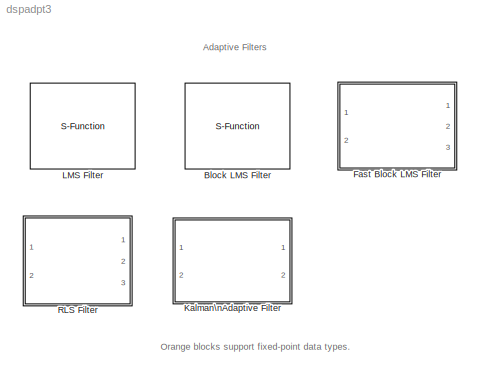
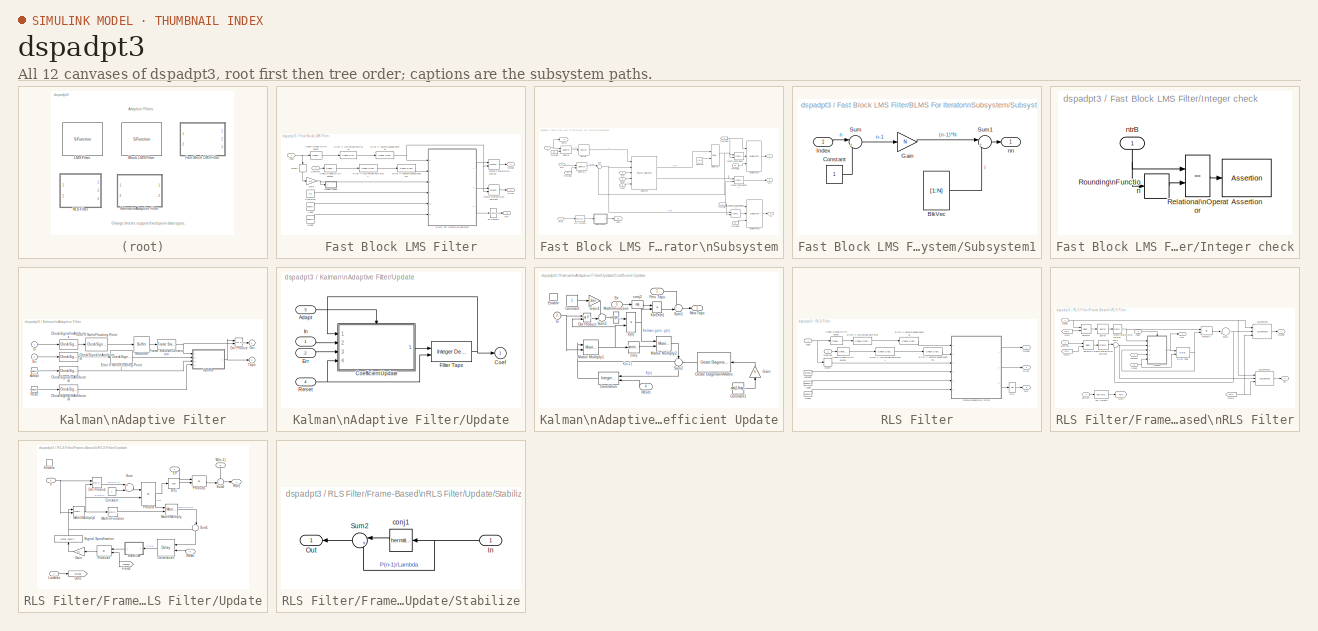
[diagram: thumbnail index - all 12 canvases of the model, root first then tree order]
MODEL dspadpt3
KIND library
BLOCK [S-Function] Block LMS Filter
  FunctionName = sdspblms
  MaskCallbackString = ||||dspblkblklms;|||dspblkblklms;||||
  MaskDescription = Computes filter weights based on the Block LMS algorithm for filtering of the input signal. The filter weights are updated once for every block of data that is processed.\n\nSelect the Enable/disable adaptation via input port check box to create an Adapt port on the block. When the input to this port is nonzero, the block continuously updates the filter weights. When the input to this port is zero...<+156ch>
  MaskDisplay = disp(blkname)\nport_label('input',si(1).port, si(1).txt);\nport_label('input',si(2).port, si(2).txt);\nport_label('input',si(3).port, si(3).txt);\nport_label('input',si(4).port, si(4).txt);\nport_label('input',si(5).port, si(5).txt);\n\nport_label('output',so(1).port, so(1).txt);\nport_label('output',so(2).port, so(2).txt);\nport_label('output',so(3).port, so(3).txt);\n\n\n
  MaskEnableString = off,off,on,on,on,on,on,on,on,on,on,on
  MaskHelp = web(dspbhelp);
  MaskIconFrame = on
  MaskIconOpaque = on
  MaskIconRotate = none
  MaskIconUnits = normalized
  MaskInitialization = resetflag = resetflag-1;\n[si,so]=dspblkblklms('icon');\nblkname = strvcat('  Block  ', '   LMS');
  MaskPromptString = dummy1|dummy2|Filter length:|Block size:|Specify step size via:|Step size (mu):|Leakage factor (0 to 1):|------------------------- Show additional parameters -------------------------|Initial value of filter weights:|Enable/disable adaptation via input port|Reset input:|Output filter weights
  MaskSelfModifiable = on
  MaskStyleString = popup(Block LMS|Fast Block LMS),checkbox,edit,edit,popup(Dialog|Input port),edit,edit,checkbox,edit,checkbox,popup(None|Rising edge|Falling edge|Either edge|Non-zero sample),checkbox
  MaskTabNameString = ,,,,,,,,,,,
  MaskToolTipString = on,on,on,on,on,on,on,on,on,on,on,on
  MaskTunableValueString = off,off,off,off,off,on,on,on,off,off,off,off
  MaskType = Block LMS Filter
  MaskValueString = Block LMS|off|32|32|Dialog|0.1|1.0|off|0|off|None|on
  MaskVarAliasString = ,,,,,,,,,,,
  MaskVariables = algo=&1;ShowPortLabels=&2;L=@3;N=@4;stepflag=@5;mu=@6;leakage=@7;addnparflag=@8;ic=@9;Adapt=@10;resetflag=@11;weights=@12;
  MaskVisibilityString = off,off,on,on,on,on,on,on,off,off,off,off
  Parameters = L,N,stepflag,mu,leakage,addnparflag,ic,Adapt,resetflag,weights
  Ports = [2, 3]
BLOCK [SubSystem] Fast Block LMS Filter
  ErrorFcn = dspblkadpterrfcn
  MaskCallbackString = |||dspblkfblms('addparams');|||dspblkfblms('addparams');||||
  MaskDescription = Computes filter weights based on the Fast Block LMS algorithm for filtering of the input signal. The filter weights are updated once for every block of data that is processed. This block uses FFT for fast convolution.\n\nSelect the Enable/disable adaptation via input port check box to create an Adapt port on the block. When the input to this port is nonzero, the block continuoulsy updates the filt...<+203ch>
  MaskDisplay = disp(blkname);
  MaskEnableString = on,on,on,on,on,on,on,on,on,on,on
  MaskIconFrame = on
  MaskIconOpaque = off
  MaskIconRotate = none
  MaskIconUnits = autoscale
  MaskInitialization = if algo == 1\n	blkname = strvcat('  Block  ', '   LMS');\nelse\n	blkname = strvcat('Fast Block ', '    LMS');	\nend\ndspblkfblms('init');
  MaskPromptString = Algorithm:|Filter length:|Block size:|Specify step size via:|Step size (mu):|Leakage factor (0 to 1):|------------------------- Show additional parameters -------------------------|Inital value of filter weights:|Enable/disable adaptation via input port|Reset input:|Output filter weights
  MaskSelfModifiable = on
  MaskStyleString = popup(Block LMS|Fast Block LMS),edit,edit,popup(Dialog|Input port),edit,edit,checkbox,edit,checkbox,popup(None|Rising Edge|Falling Edge|Either Edge|Non-zero sample),checkbox
  MaskTabNameString = ,,,,,,,,,,
  MaskToolTipString = on,on,on,on,on,on,on,on,on,on,on
  MaskTunableValueString = off,off,off,off,on,on,on,off,off,off,off
  MaskType = Fast Block LMS Filter
  MaskValueString = Fast Block LMS|32|32|Dialog|0.1|1.0|off|0|off|None|on
  MaskVarAliasString = ,,,,,,,,,,
  MaskVariables = algo=@1;L=@2;N=@3;stepflag=@4;mu=@5;leakage=@6;addnparflag=@7;ic=@8;Adapt=@9;resetflag=@10;weights=@11;
  MaskVisibilityString = off,on,on,on,on,on,on,off,off,off,off
  MinAlgLoopOccurrences = off
  Ports = [2, 3]
  PropExecContextAcrossSSBoundary = on
  RTWSystemCode = Auto
  TreatAsAtomicUnit = off
BLOCK [Constant] Fast Block LMS Filter/Adapt
  Value = boolean(1)
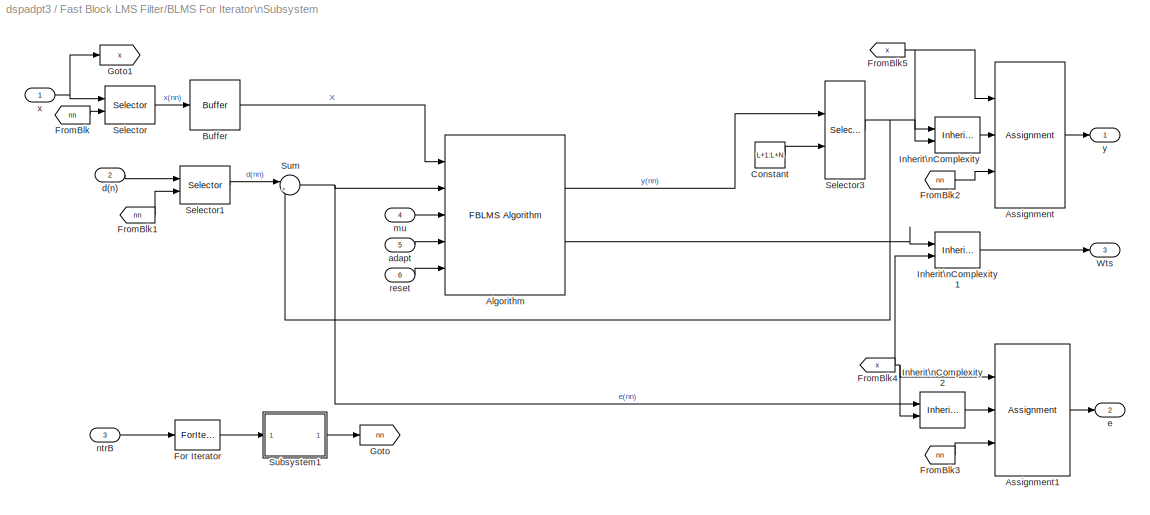
BLOCK [SubSystem] Fast Block LMS Filter/BLMS For Iterator\nSubsystem
  MaskCallbackString = ||
  MaskEnableString = on,on,on
  MaskIconFrame = on
  MaskIconOpaque = on
  MaskIconRotate = none
  MaskIconUnits = autoscale
  MaskInitialization = dspblkfblmsfor;
  MaskPromptString = Algorithm:|Input step size via port:|Send filter weights to output:
  MaskSelfModifiable = on
  MaskStyleString = popup(Block LMS|Fast Block LMS),checkbox,checkbox
  MaskTabNameString = ,,
  MaskToolTipString = on,on,on
  MaskTunableValueString = off,off,off
  MaskValueString = Fast Block LMS|off|on
  MaskVarAliasString = ,,
  MaskVariables = algo_for=@1;stepflag_for=@2;weights_for=@3;
  MaskVisibilityString = on,on,on
  MinAlgLoopOccurrences = off
  Ports = [6, 3]
  PropExecContextAcrossSSBoundary = on
  RTWSystemCode = Auto
  TreatAsAtomicUnit = on
BLOCK [Reference] Fast Block LMS Filter/BLMS For Iterator\nSubsystem/Algorithm  REF=adptfiltsubsys/FBLMS Algorithm  (lib defined in mdl_8073bbbc424e)
  Ports = [5, 2]
  ShowPortLabels = on
  SourceBlock = adptfiltsubsys/FBLMS Algorithm
  SourceType = FBLMS Algorithm
  weights_algo = on
BLOCK [Assignment] Fast Block LMS Filter/BLMS For Iterator\nSubsystem/Assignment
  ElementSrc = External
  Ports = [3, 1]
BLOCK [Assignment] Fast Block LMS Filter/BLMS For Iterator\nSubsystem/Assignment1
  ElementSrc = External
  Ports = [3, 1]
BLOCK [Reference] Fast Block LMS Filter/BLMS For Iterator\nSubsystem/Buffer  REF=dspbuff3/Buffer
  N = L+N
  Ports = [1, 1]
  SourceBlock = dspbuff3/Buffer
  SourceType = Buffer
  V = L
  ic = 0
BLOCK [Constant] Fast Block LMS Filter/BLMS For Iterator\nSubsystem/Constant
  Value = L+1:L+N
BLOCK [ForIterator] Fast Block LMS Filter/BLMS For Iterator\nSubsystem/For Iterator
  IterationSource = external
  IterationVariableDataType = double
  Ports = [1, 1]
BLOCK [From] Fast Block LMS Filter/BLMS For Iterator\nSubsystem/FromBlk
  CloseFcn = tagdialog Close
  DialogController = Simulink.DDGSource
  GotoTag = nn
BLOCK [From] Fast Block LMS Filter/BLMS For Iterator\nSubsystem/FromBlk1
  CloseFcn = tagdialog Close
  DialogController = Simulink.DDGSource
  GotoTag = nn
BLOCK [From] Fast Block LMS Filter/BLMS For Iterator\nSubsystem/FromBlk2
  CloseFcn = tagdialog Close
  DialogController = Simulink.DDGSource
  GotoTag = nn
BLOCK [From] Fast Block LMS Filter/BLMS For Iterator\nSubsystem/FromBlk3
  CloseFcn = tagdialog Close
  DialogController = Simulink.DDGSource
  GotoTag = nn
BLOCK [From] Fast Block LMS Filter/BLMS For Iterator\nSubsystem/FromBlk4
  CloseFcn = tagdialog Close
  DialogController = Simulink.DDGSource
  GotoTag = x
BLOCK [From] Fast Block LMS Filter/BLMS For Iterator\nSubsystem/FromBlk5
  CloseFcn = tagdialog Close
  DialogController = Simulink.DDGSource
  GotoTag = x
BLOCK [Goto] Fast Block LMS Filter/BLMS For Iterator\nSubsystem/Goto
  DialogController = Simulink.DDGSource
  GotoTag = nn
  TagVisibility = local
BLOCK [Goto] Fast Block LMS Filter/BLMS For Iterator\nSubsystem/Goto1
  DialogController = Simulink.DDGSource
  GotoTag = x
  TagVisibility = local
BLOCK [Reference] Fast Block LMS Filter/BLMS For Iterator\nSubsystem/Inherit\nComplexity  REF=dspsigattribs/Inherit\nComplexity
  Ports = [2, 1]
  SourceBlock = dspsigattribs/Inherit\nComplexity
  SourceType = Inherit Complexity
BLOCK [Reference] Fast Block LMS Filter/BLMS For Iterator\nSubsystem/Inherit\nComplexity1  REF=dspsigattribs/Inherit\nComplexity
  Ports = [2, 1]
  SourceBlock = dspsigattribs/Inherit\nComplexity
  SourceType = Inherit Complexity
BLOCK [Reference] Fast Block LMS Filter/BLMS For Iterator\nSubsystem/Inherit\nComplexity2  REF=dspsigattribs/Inherit\nComplexity
  Ports = [2, 1]
  SourceBlock = dspsigattribs/Inherit\nComplexity
  SourceType = Inherit Complexity
BLOCK [Selector] Fast Block LMS Filter/BLMS For Iterator\nSubsystem/Selector
  ElementSrc = External
  Elements = [1 3]
  Ports = [2, 1]
BLOCK [Selector] Fast Block LMS Filter/BLMS For Iterator\nSubsystem/Selector1
  ElementSrc = External
  Elements = [1 3]
  Ports = [2, 1]
BLOCK [Selector] Fast Block LMS Filter/BLMS For Iterator\nSubsystem/Selector3
  ElementSrc = External
  Elements = [1 3]
  Ports = [2, 1]
BLOCK [SubSystem] Fast Block LMS Filter/BLMS For Iterator\nSubsystem/Subsystem1
  MinAlgLoopOccurrences = off
  Ports = [1, 1]
  PropExecContextAcrossSSBoundary = on
  RTWSystemCode = Auto
  TreatAsAtomicUnit = off
BLOCK [Constant] Fast Block LMS Filter/BLMS For Iterator\nSubsystem/Subsystem1/BlkVec
  Value = [1:N]
BLOCK [Constant] Fast Block LMS Filter/BLMS For Iterator\nSubsystem/Subsystem1/Constant
BLOCK [Gain] Fast Block LMS Filter/BLMS For Iterator\nSubsystem/Subsystem1/Gain
  Gain = N
BLOCK [Inport] Fast Block LMS Filter/BLMS For Iterator\nSubsystem/Subsystem1/Index
  IconDisplay = Port number
  LatchInput = off
BLOCK [Sum] Fast Block LMS Filter/BLMS For Iterator\nSubsystem/Subsystem1/Sum
  IconShape = round
  InputSameDT = off
  Inputs = |+-
  OutDataTypeMode = Inherit via internal rule
  Ports = [2, 1]
BLOCK [Sum] Fast Block LMS Filter/BLMS For Iterator\nSubsystem/Subsystem1/Sum1
  IconShape = round
  InputSameDT = off
  Inputs = |++
  OutDataTypeMode = Inherit via internal rule
  Ports = [2, 1]
BLOCK [Outport] Fast Block LMS Filter/BLMS For Iterator\nSubsystem/Subsystem1/nn
  BusOutputAsStruct = off
  IconDisplay = Port number
BLOCK [Sum] Fast Block LMS Filter/BLMS For Iterator\nSubsystem/Sum
  IconShape = round
  InputSameDT = off
  Inputs = |+-
  OutDataTypeMode = Inherit via internal rule
  Ports = [2, 1]
BLOCK [Outport] Fast Block LMS Filter/BLMS For Iterator\nSubsystem/Wts
  BusOutputAsStruct = off
  IconDisplay = Port number
  Port = 3
BLOCK [Inport] Fast Block LMS Filter/BLMS For Iterator\nSubsystem/adapt
  IconDisplay = Port number
  LatchInput = off
  Port = 5
BLOCK [Inport] Fast Block LMS Filter/BLMS For Iterator\nSubsystem/d(n)
  IconDisplay = Port number
  LatchInput = off
  Port = 2
BLOCK [Outport] Fast Block LMS Filter/BLMS For Iterator\nSubsystem/e
  BusOutputAsStruct = off
  IconDisplay = Port number
  Port = 2
BLOCK [Inport] Fast Block LMS Filter/BLMS For Iterator\nSubsystem/mu
  IconDisplay = Port number
  LatchInput = off
  Port = 4
BLOCK [Inport] Fast Block LMS Filter/BLMS For Iterator\nSubsystem/ntrB
  IconDisplay = Port number
  LatchInput = off
  Port = 3
BLOCK [Inport] Fast Block LMS Filter/BLMS For Iterator\nSubsystem/reset
  IconDisplay = Port number
  LatchInput = off
  Port = 6
BLOCK [Inport] Fast Block LMS Filter/BLMS For Iterator\nSubsystem/x
  IconDisplay = Port number
  LatchInput = off
BLOCK [Outport] Fast Block LMS Filter/BLMS For Iterator\nSubsystem/y
  BusOutputAsStruct = off
  IconDisplay = Port number
BLOCK [Reference] Fast Block LMS Filter/Check Signal\nAttributes  REF=dspsigattribs/Check Signal\nAttributes
  Complexity = Ignore
  DatatypeCheckMethod = Ignore
  DatatypeGeneral = Boolean
  Dimensions = Full matrix (2-D)
  DimsCheckMethod = Is...
  DtypeFixedSpecific = Any fixed-point
  DtypeFloatSpecific = Any floating-point
  DtypeIntSpecific = Any integer
  Frame = Ignore
  Ports = [1, 1]
  SampleMode = Ignore
  ShowPortLabels = on
  SigAttribCheckMethod = Matches attributes exactly
  SourceBlock = dspsigattribs/Check Signal\nAttributes
  SourceType = Check Signal Attributes
BLOCK [Reference] Fast Block LMS Filter/Check Signal\nAttributes1  REF=dspsigattribs/Check Signal\nAttributes
  Complexity = Ignore
  DatatypeCheckMethod = Ignore
  DatatypeGeneral = Boolean
  Dimensions = Full matrix (2-D)
  DimsCheckMethod = Is...
  DtypeFixedSpecific = Any fixed-point
  DtypeFloatSpecific = Any floating-point
  DtypeIntSpecific = Any integer
  Frame = Ignore
  Ports = [1, 1]
  SampleMode = Ignore
  ShowPortLabels = on
  SigAttribCheckMethod = Matches attributes exactly
  SourceBlock = dspsigattribs/Check Signal\nAttributes
  SourceType = Check Signal Attributes
BLOCK [Inport] Fast Block LMS Filter/Desired
  IconDisplay = Port number
  LatchInput = off
  Port = 2
BLOCK [Outport] Fast Block LMS Filter/Error
  BusOutputAsStruct = off
  IconDisplay = Port number
  Port = 2
BLOCK [Reference] Fast Block LMS Filter/Error If Not\nFloating-Point  REF=dspsigattribs/Check Signal\nAttributes
  Complexity = Ignore
  DatatypeCheckMethod = Is...
  DatatypeGeneral = Floating-point
  Dimensions = 1-D
  DimsCheckMethod = Ignore
  DtypeFixedSpecific = Any fixed-point
  DtypeFloatSpecific = Any floating-point
  DtypeIntSpecific = Any integer
  Frame = Ignore
  Ports = [1, 1]
  SampleMode = Ignore
  ShowPortLabels = on
  SigAttribCheckMethod = Does not match attributes exactly
  SourceBlock = dspsigattribs/Check Signal\nAttributes
  SourceType = Check Signal Attributes
BLOCK [Reference] Fast Block LMS Filter/Error If Not\nFloating-Point1  REF=dspsigattribs/Check Signal\nAttributes
  Complexity = Ignore
  DatatypeCheckMethod = Is...
  DatatypeGeneral = Floating-point
  Dimensions = 1-D
  DimsCheckMethod = Ignore
  DtypeFixedSpecific = Any fixed-point
  DtypeFloatSpecific = Any floating-point
  DtypeIntSpecific = Any integer
  Frame = Ignore
  Ports = [1, 1]
  SampleMode = Ignore
  ShowPortLabels = on
  SigAttribCheckMethod = Does not match attributes exactly
  SourceBlock = dspsigattribs/Check Signal\nAttributes
  SourceType = Check Signal Attributes
BLOCK [Reference] Fast Block LMS Filter/Error If sample-based\nvector  REF=dspsigattribs/Check Signal\nAttributes
  Complexity = Ignore
  DatatypeCheckMethod = Ignore
  DatatypeGeneral = Boolean
  Dimensions = Vector (1-D or 2-D)
  DimsCheckMethod = Is...
  DtypeFixedSpecific = Any fixed-point
  DtypeFloatSpecific = Any floating-point
  DtypeIntSpecific = Any integer
  Frame = Sample-based
  Ports = [1, 1]
  SampleMode = Ignore
  ShowPortLabels = on
  SigAttribCheckMethod = Matches attributes exactly
  SourceBlock = dspsigattribs/Check Signal\nAttributes
  SourceType = Check Signal Attributes
BLOCK [Reference] Fast Block LMS Filter/Error If sample-based\nvector1  REF=dspsigattribs/Check Signal\nAttributes
  Complexity = Ignore
  DatatypeCheckMethod = Ignore
  DatatypeGeneral = Boolean
  Dimensions = Vector (1-D or 2-D)
  DimsCheckMethod = Is...
  DtypeFixedSpecific = Any fixed-point
  DtypeFloatSpecific = Any floating-point
  DtypeIntSpecific = Any integer
  Frame = Sample-based
  Ports = [1, 1]
  SampleMode = Ignore
  ShowPortLabels = on
  SigAttribCheckMethod = Matches attributes exactly
  SourceBlock = dspsigattribs/Check Signal\nAttributes
  SourceType = Check Signal Attributes
BLOCK [Reference] Fast Block LMS Filter/Frame Status\nConversion  REF=dspsigattribs/Frame Status\nConversion
  Ports = [2, 1]
  ShowPortLabels = off
  SourceBlock = dspsigattribs/Frame Status\nConversion
  SourceType = Frame Status Conversion
  growRefPort = on
  outframe = Sample-based
BLOCK [Reference] Fast Block LMS Filter/Frame Status\nConversion1  REF=dspsigattribs/Frame Status\nConversion
  Ports = [2, 1]
  ShowPortLabels = off
  SourceBlock = dspsigattribs/Frame Status\nConversion
  SourceType = Frame Status Conversion
  growRefPort = on
  outframe = Sample-based
BLOCK [Gain] Fast Block LMS Filter/Gain
  Gain = 1/N
BLOCK [Inport] Fast Block LMS Filter/Input
  IconDisplay = Port number
  LatchInput = off
BLOCK [SubSystem] Fast Block LMS Filter/Integer check
  MinAlgLoopOccurrences = off
  Ports = [1]
  PropExecContextAcrossSSBoundary = on
  RTWSystemCode = Auto
  TreatAsAtomicUnit = off
BLOCK [Assertion] Fast Block LMS Filter/Integer check/Assertion
  AssertionFailFcn = error('The input frame length is not an integer multiple of the Block length');
BLOCK [RelationalOperator] Fast Block LMS Filter/Integer check/Relational\nOperator
  InputSameDT = off
  LogicOutDataTypeMode = Boolean
  Operator = ==
BLOCK [Rounding] Fast Block LMS Filter/Integer check/Rounding\nFunction
  Operator = fix
BLOCK [Inport] Fast Block LMS Filter/Integer check/ntrB
  IconDisplay = Port number
  LatchInput = off
BLOCK [Outport] Fast Block LMS Filter/Output
  BusOutputAsStruct = off
  IconDisplay = Port number
BLOCK [Constant] Fast Block LMS Filter/Reset
  Value = boolean(0)
BLOCK [Constant] Fast Block LMS Filter/Step-size
  OutDataTypeMode = Inherit via back propagation
  Value = mu
BLOCK [Reference] Fast Block LMS Filter/To Sample  REF=dspsigattribs/Frame Status\nConversion
  Ports = [1, 1]
  ShowPortLabels = off
  SourceBlock = dspsigattribs/Frame Status\nConversion
  SourceType = Frame Status Conversion
  growRefPort = off
  outframe = Sample-based
BLOCK [Width] Fast Block LMS Filter/Width
BLOCK [Outport] Fast Block LMS Filter/Wts
  BusOutputAsStruct = off
  IconDisplay = Port number
  Port = 3
BLOCK [SubSystem] Kalman\nAdaptive Filter
  MaskCallbackString = ||||||
  MaskDescription = One-step Kalman predictor algorithm for adaptive FIR filtering of input signal.\n\nIf 'Adapt input' is checked and the Adapt signal is zero, the algorithm temporarily disables adaptation of the filter coefficients.  A non-zero signal enables filter adaptation.\n\nIf the 'Reset input' is enabled and the Reset signal transitions appropriately, the filter coefficients are reset to the initial conditi...<+6ch>
  MaskDisplay = disp('Kalman')
  MaskEnableString = on,on,on,on,on,on,on
  MaskHelp = web(dspbhelp);
  MaskIconFrame = on
  MaskIconOpaque = off
  MaskIconRotate = none
  MaskIconUnits = autoscale
  MaskInitialization = if prod(size(ic0))==1, ic = ic0(ones(Ntaps,1)); else ic = ic0; end\nif prod(size(K0))==1, K = K0.*eye(Ntaps);\nelseif any(size(K0)==1), K = diag(K0);\nelse K=K0; end\ndspblkadpt('init');\n
  MaskPromptString = FIR filter length:|Measurement noise variance:|Process noise variance:|Initial value of filter taps:|Initial error correlation matrix:|Adapt input|Reset input:
  MaskSelfModifiable = on
  MaskStyleString = edit,edit,edit,edit,edit,checkbox,popup(None|Rising edge|Falling edge|Either edge|Non-zero sample)
  MaskTabNameString = ,,,,,,
  MaskToolTipString = on,on,on,on,on,on,on
  MaskTunableValueString = off,on,on,off,off,off,off
  MaskType = Kalman Adaptive Filter
  MaskValueString = 64|0.3|0.1|0|0.5|off|None
  MaskVarAliasString = ,,,,,,
  MaskVariables = Ntaps=@1;Jmin=@2;q=@3;ic0=@4;K0=@5;Adapt=@6;RstPort=@7;
  MaskVisibilityString = on,on,on,on,on,on,on
  MinAlgLoopOccurrences = off
  Ports = [2, 2]
  PropExecContextAcrossSSBoundary = on
  RTWSystemCode = Auto
  TreatAsAtomicUnit = off
BLOCK [Constant] Kalman\nAdaptive Filter/Adapt
  Value = boolean(1)
BLOCK [Reference] Kalman\nAdaptive Filter/Check Signal\nAttributes  REF=dspsigattribs/Check Signal\nAttributes
  Complexity = Ignore
  DatatypeCheckMethod = Ignore
  DatatypeGeneral = Boolean
  Dimensions = Scalar (1-D or 2-D)
  DimsCheckMethod = Is...
  DtypeFixedSpecific = Any fixed-point
  DtypeFloatSpecific = Any floating-point
  DtypeIntSpecific = Any integer
  Frame = Sample-based
  Ports = [1, 1]
  SampleMode = Ignore
  ShowPortLabels = on
  SigAttribCheckMethod = Does not match attributes exactly
  SourceBlock = dspsigattribs/Check Signal\nAttributes
  SourceType = Check Signal Attributes
BLOCK [Reference] Kalman\nAdaptive Filter/Check Signal\nAttributes1  REF=dspsigattribs/Check Signal\nAttributes
  Complexity = Ignore
  DatatypeCheckMethod = Ignore
  DatatypeGeneral = Boolean
  Dimensions = Scalar (1-D or 2-D)
  DimsCheckMethod = Is...
  DtypeFixedSpecific = Any fixed-point
  DtypeFloatSpecific = Any floating-point
  DtypeIntSpecific = Any integer
  Frame = Sample-based
  Ports = [1, 1]
  SampleMode = Ignore
  ShowPortLabels = on
  SigAttribCheckMethod = Does not match attributes exactly
  SourceBlock = dspsigattribs/Check Signal\nAttributes
  SourceType = Check Signal Attributes
BLOCK [Reference] Kalman\nAdaptive Filter/Check Signal\nAttributes2  REF=dspsigattribs/Check Signal\nAttributes
  Complexity = Ignore
  DatatypeCheckMethod = Ignore
  DatatypeGeneral = Boolean
  Dimensions = Scalar (1-D or 2-D)
  DimsCheckMethod = Is...
  DtypeFixedSpecific = Any fixed-point
  DtypeFloatSpecific = Any floating-point
  DtypeIntSpecific = Any integer
  Frame = Sample-based
  Ports = [1, 1]
  SampleMode = Ignore
  ShowPortLabels = on
  SigAttribCheckMethod = Does not match attributes exactly
  SourceBlock = dspsigattribs/Check Signal\nAttributes
  SourceType = Check Signal Attributes
BLOCK [Reference] Kalman\nAdaptive Filter/Check Signal\nAttributes3  REF=dspsigattribs/Check Signal\nAttributes
  Complexity = Ignore
  DatatypeCheckMethod = Ignore
  DatatypeGeneral = Boolean
  Dimensions = Scalar (1-D or 2-D)
  DimsCheckMethod = Is...
  DtypeFixedSpecific = Any fixed-point
  DtypeFloatSpecific = Any floating-point
  DtypeIntSpecific = Any integer
  Frame = Sample-based
  Ports = [1, 1]
  SampleMode = Ignore
  ShowPortLabels = on
  SigAttribCheckMethod = Does not match attributes exactly
  SourceBlock = dspsigattribs/Check Signal\nAttributes
  SourceType = Check Signal Attributes
BLOCK [Reference] Kalman\nAdaptive Filter/Dot Product  REF=simulink/Math\nOperations/Dot Product
  DoSatur = off
  InputSameDT = off
  LockScale = off
  OutDataType = sfix(16)
  OutScaling = 2^-10
  OutputDataTypeScalingMode = Inherit via internal rule
  Ports = [2, 1]
  RndMeth = Floor
  SourceBlock = simulink/Math\nOperations/Dot Product
  SourceType = Dot Product
BLOCK [Inport] Kalman\nAdaptive Filter/Err
  IconDisplay = Port number
  LatchInput = off
  Port = 2
BLOCK [Reference] Kalman\nAdaptive Filter/Error If Not\nFloating-Point  REF=dspsigattribs/Check Signal\nAttributes
  Complexity = Ignore
  DatatypeCheckMethod = Is...
  DatatypeGeneral = Floating-point
  Dimensions = 1-D
  DimsCheckMethod = Ignore
  DtypeFixedSpecific = Any fixed-point
  DtypeFloatSpecific = Any floating-point
  DtypeIntSpecific = Any integer
  Frame = Ignore
  Ports = [1, 1]
  SampleMode = Ignore
  ShowPortLabels = on
  SigAttribCheckMethod = Does not match attributes exactly
  SourceBlock = dspsigattribs/Check Signal\nAttributes
  SourceType = Check Signal Attributes
BLOCK [Reference] Kalman\nAdaptive Filter/Error If Not\nFloating-Point1  REF=dspsigattribs/Check Signal\nAttributes
  Complexity = Ignore
  DatatypeCheckMethod = Is...
  DatatypeGeneral = Floating-point
  Dimensions = 1-D
  DimsCheckMethod = Ignore
  DtypeFixedSpecific = Any fixed-point
  DtypeFloatSpecific = Any floating-point
  DtypeIntSpecific = Any integer
  Frame = Ignore
  Ports = [1, 1]
  SampleMode = Ignore
  ShowPortLabels = on
  SigAttribCheckMethod = Does not match attributes exactly
  SourceBlock = dspsigattribs/Check Signal\nAttributes
  SourceType = Check Signal Attributes
BLOCK [Reference] Kalman\nAdaptive Filter/Frame Status\nConversion  REF=dspsigattribs/Frame Status\nConversion
  Ports = [1, 1]
  ShowPortLabels = off
  SourceBlock = dspsigattribs/Frame Status\nConversion
  SourceType = Frame Status Conversion
  growRefPort = off
  outframe = Sample-based
BLOCK [Inport] Kalman\nAdaptive Filter/In
  IconDisplay = Port number
  LatchInput = off
BLOCK [Outport] Kalman\nAdaptive Filter/Out
  BusOutputAsStruct = off
  IconDisplay = Port number
  InitialOutput = 0
BLOCK [Reference] Kalman\nAdaptive Filter/Rebuffer  REF=dspbuff3/Buffer
  N = Ntaps
  Ports = [1, 1]
  SourceBlock = dspbuff3/Buffer
  SourceType = Buffer
  V = Ntaps-1
  ic = 0
BLOCK [Constant] Kalman\nAdaptive Filter/Reset
  Value = boolean(0)
BLOCK [Outport] Kalman\nAdaptive Filter/Taps
  BusOutputAsStruct = off
  IconDisplay = Port number
  InitialOutput = 0
  Port = 2
BLOCK [SubSystem] Kalman\nAdaptive Filter/Update
  MinAlgLoopOccurrences = off
  Ports = [4, 1]
  PropExecContextAcrossSSBoundary = on
  RTWSystemCode = Auto
  TreatAsAtomicUnit = off
BLOCK [Inport] Kalman\nAdaptive Filter/Update/Adapt
  IconDisplay = Port number
  LatchInput = off
  Port = 3
BLOCK [Outport] Kalman\nAdaptive Filter/Update/Coef
  BusOutputAsStruct = off
  IconDisplay = Port number
  InitialOutput = 0
BLOCK [SubSystem] Kalman\nAdaptive Filter/Update/Coefficient Update
  MinAlgLoopOccurrences = off
  Ports = [4, 1, 1]
  PropExecContextAcrossSSBoundary = on
  RTWSystemCode = Auto
  TreatAsAtomicUnit = on
BLOCK [Constant] Kalman\nAdaptive Filter/Update/Coefficient Update/Constant
  OutDataTypeMode = Inherit via back propagation
BLOCK [Constant] Kalman\nAdaptive Filter/Update/Coefficient Update/Constant1
  OutDataTypeMode = Inherit via back propagation
  Value = ones(1,Ntaps)
BLOCK [Reference] Kalman\nAdaptive Filter/Update/Coefficient Update/Correlation  REF=dspobslib/Integer Delay
  Ports = [2, 1]
  SourceBlock = dspobslib/Integer Delay
  SourceType = Integer Delay
  delay = 1
  ic = K
  reset_popup = Either edge
BLOCK [Reference] Kalman\nAdaptive Filter/Update/Coefficient Update/Create Diagonal\nMatrix  REF=dspmtrx3/Create Diagonal\nMatrix
  Ports = [1, 1]
  SourceBlock = dspmtrx3/Create Diagonal\nMatrix
  SourceType = Create Diagonal Matrix
BLOCK [Reference] Kalman\nAdaptive Filter/Update/Coefficient Update/Dot Product  REF=simulink/Math\nOperations/Dot Product
  Ports = [2, 1]
  SourceBlock = simulink/Math\nOperations/Dot Product
  SourceType = Dot Product
BLOCK [EnablePort] Kalman\nAdaptive Filter/Update/Coefficient Update/Enable
  Ports = []
  ZeroCross = off
BLOCK [Inport] Kalman\nAdaptive Filter/Update/Coefficient Update/Err
  IconDisplay = Port number
  LatchInput = off
  Port = 3
BLOCK [Gain] Kalman\nAdaptive Filter/Update/Coefficient Update/Gain
  Gain = q
BLOCK [Gain] Kalman\nAdaptive Filter/Update/Coefficient Update/Gain1
  Gain = Jmin
BLOCK [Inport] Kalman\nAdaptive Filter/Update/Coefficient Update/In
  IconDisplay = Port number
  LatchInput = off
  Port = 2
BLOCK [Math] Kalman\nAdaptive Filter/Update/Coefficient Update/Math\nFunction
  Operator = reciprocal
  Ports = [1, 1]
BLOCK [Reference] Kalman\nAdaptive Filter/Update/Coefficient Update/Matrix Multiply1  REF=dspmtrx3/Matrix Multiply
  OptimizationLevel = None
  Ports = [2, 1]
  SourceBlock = dspmtrx3/Matrix Multiply
  SourceType = Matrix Multiply
  numInputPorts = 2
BLOCK [Reference] Kalman\nAdaptive Filter/Update/Coefficient Update/Matrix Multiply2  REF=dspmtrx3/Matrix Multiply
  OptimizationLevel = None
  Ports = [2, 1]
  SourceBlock = dspmtrx3/Matrix Multiply
  SourceType = Matrix Multiply
  numInputPorts = 2
BLOCK [Outport] Kalman\nAdaptive Filter/Update/Coefficient Update/New Taps
  BusOutputAsStruct = off
  IconDisplay = Port number
  InitialOutput = ic
BLOCK [Inport] Kalman\nAdaptive Filter/Update/Coefficient Update/Prev Taps
  IconDisplay = Port number
  LatchInput = off
BLOCK [Inport] Kalman\nAdaptive Filter/Update/Coefficient Update/Reset
  IconDisplay = Port number
  LatchInput = off
  Port = 4
BLOCK [Sum] Kalman\nAdaptive Filter/Update/Coefficient Update/Sum1
  IconShape = round
  Inputs = ++|
  Ports = [2, 1]
BLOCK [Sum] Kalman\nAdaptive Filter/Update/Coefficient Update/Sum2
  IconShape = round
  Inputs = +-+
  Ports = [3, 1]
BLOCK [Sum] Kalman\nAdaptive Filter/Update/Coefficient Update/Sum3
  IconShape = round
  Inputs = ++|
  Ports = [2, 1]
BLOCK [Math] Kalman\nAdaptive Filter/Update/Coefficient Update/conj
  Operator = hermitian
  Ports = [1, 1]
BLOCK [Math] Kalman\nAdaptive Filter/Update/Coefficient Update/conj2
  Operator = conj
  Ports = [1, 1]
BLOCK [Product] Kalman\nAdaptive Filter/Update/Coefficient Update/k(n)
  Ports = [2, 1]
  RndMeth = Floor
BLOCK [Product] Kalman\nAdaptive Filter/Update/Coefficient Update/k(n)*e(n)
  Ports = [2, 1]
  RndMeth = Floor
BLOCK [Inport] Kalman\nAdaptive Filter/Update/Err
  IconDisplay = Port number
  LatchInput = off
  Port = 2
BLOCK [Reference] Kalman\nAdaptive Filter/Update/Filter Taps  REF=dspobslib/Integer Delay
  Ports = [2, 1]
  SourceBlock = dspobslib/Integer Delay
  SourceType = Integer Delay
  delay = 1
  ic = ic
  reset_popup = Non-zero sample
BLOCK [Inport] Kalman\nAdaptive Filter/Update/In
  IconDisplay = Port number
  LatchInput = off
BLOCK [Inport] Kalman\nAdaptive Filter/Update/Reset
  IconDisplay = Port number
  LatchInput = off
  Port = 4
BLOCK [S-Function] LMS Filter
  CopyFcn = dspfixptcopycallback;
  DialogController = dspDDGCreate
  DialogControllerArgs = DataTag0
  FunctionName = sdsplms
  MaskCallbackString = |||||||||||||||||||||||||||||||||||||
  MaskDescription = Adapts the filter weights based on the chosen algorithm for filtering of the input signal.\n\nSelect the Enable/disable adaptation via input port check box to create an Adapt port on the block. When the input to this port is nonzero, the block continuously updates the filter weights. When the input to this port is zero, the filter weights remain constant.\n\nIf the Reset port is enabled and a rese...<+76ch>
  MaskDisplay = disp(disp_str)\nport_label('input',si(1).port, si(1).txt);\nport_label('input',si(2).port, si(2).txt);\nport_label('input',si(3).port, si(3).txt);\nport_label('input',si(4).port, si(4).txt);\nport_label('input',si(5).port, si(5).txt);\n\nport_label('output',so(1).port, so(1).txt);\nport_label('output',so(2).port, so(2).txt);\nport_label('output',so(3).port, so(3).txt);\n\n\n
  MaskEnableString = off,on,on,on,on,on,on,on,on,on,on,on,on,on,off,on,on,on,on,on,on,on,on,on,on,on,on,on,on,on,on,on,on,on,on,on,on,off
  MaskHelp = web(dspbhelp);
  MaskIconFrame = on
  MaskIconOpaque = on
  MaskIconRotate = none
  MaskIconUnits = normalized
  MaskInitialization = resetflag = resetflag-1;\nic=flipud(ic(:));\n[si,so,disp_str,dtInfo]=dspblklms;\n\nSAME_AS = 1;\nUSER_DEF = 2;\n% prod outputs\nif dtInfo.prodOutputMode == 0 % 'USER_DEFINED'\n	prodOutput2Mode = USER_DEF;\n	prodOutput3Mode = USER_DEF;\n	prodOutput4Mode = USER_DEF;\n	quotientMode = USER_DEF;\nelse\n	prodOutput2Mode = SAME_AS;\n	prodOutput3Mode = SAME_AS;\n	prodOutput4Mode = SAME_AS;\n	quotientMode ...<+133ch>
  MaskPromptString = dummy|Algorithm:|Filter length:|Specify step size via:|Step size (mu):|Leakage factor (0 to 1):|Initial value of filter weights:|Enable/disable adaptation via input port|Reset input:|Output filter weights|Step size (mu) attributes:|Step size (mu) word length:|Step size (mu) fraction length:|Leakage factor attributes:|DUMMY lkg wordlength:|Leakage factor fraction length:|Accumulator (XTX) attribute...<+661ch>
  MaskSelfModifiable = on
  MaskStyleString = checkbox,popup(LMS|Normalized LMS|Sign-Error LMS|Sign-Data LMS|Sign-Sign LMS),edit,popup(Dialog|Input port),edit,edit,edit,checkbox,popup(None|Rising edge|Falling edge|Either edge|Non-zero sample),checkbox,popup(Same word length as first input|Specify word length|Binary point scaling|Slope and bias scaling|User-defined),edit,edit,popup(Same word length as first input|Specify word length|Binary poi...<+837ch>
  MaskTabNameString = ,,,,,,,,,,,,,,,,,,,,,,,,,,,,,,,,,,,,,
  MaskToolTipString = on,on,on,on,on,on,on,on,on,on,on,on,on,on,on,on,on,on,on,on,on,on,on,on,on,on,on,on,on,on,on,on,on,on,on,on,on,on
  MaskTunableValueString = off,off,off,off,on,on,off,off,off,off,off,off,off,off,off,off,off,off,off,off,off,off,off,off,off,off,off,off,off,off,off,off,off,off,off,off,off,off
  MaskType = LMS Filter
  MaskValueString = off|LMS|32|Dialog|0.1|1.0|0|off|None|on|Same word length as first input|16|15|User-defined|2|15|Same as first input|32|20|User-defined|20|Same as first input|32|20|User-defined|20|User-defined|20|User-defined|20|User-defined|20|Same as first input|16|15|Floor|off|off
  MaskVarAliasString = ,,,,,,,,,,,,,,,,,,,,,,,,,,,,,,,,,,,,,
  MaskVariables = ShowPortLabels=&1;Algo=@2;L=@3;stepflag=@4;mu=@5;leakage=@6;ic=@7;Adapt=@8;resetflag=@9;weights=@10;firstCoeffMode=@11;firstCoeffWordLength=@12;firstCoeffFracLength=@13;secondCoeffMode=@14;secondCoeffWordLength=@15;secondCoeffFracLength=@16;accumMode=@17;accumWordLength=@18;accumFracLength=@19;accum2Mode=@20;accum2FracLength=@21;prodOutputMode=@22;prodOutputWordLength=@23;prodOutputFracLength=@24;...<+285ch>
  MaskVisibilityString = off,on,on,on,on,on,on,on,on,on,on,on,on,on,off,on,on,on,on,on,on,on,on,on,on,on,on,on,on,on,on,on,on,on,on,on,on,off
  Parameters = Algo,L,stepflag,mu,leakage,ic,Adapt,resetflag,weights,accum2Mode,accum2FracLength,prodOutput2Mode,prodOutput2FracLength,prodOutput3Mode,prodOutput3FracLength,prodOutput4Mode,prodOutput4FracLength,quotientMode,quotientFracLength,dtInfo.firstCoeffMode, dtInfo.firstCoeffWordLength, dtInfo.firstCoeffFracLength,dtInfo.firstCoeffMode, dtInfo.firstCoeffWordLength, dtInfo.secondCoeffFracLength,dtInfo.prod...<+235ch>
  Ports = [2, 3]
BLOCK [SubSystem] RLS Filter
  ErrorFcn = dspblkadpterrfcn
  MaskCallbackString = |dspblkrls('addparams');||dspblkrls('addparams');|||||
  MaskDescription = Computes filter weights based on the exponentially weighted recursive least-squares (RLS) algorithm for adaptive filtering of the input signal.\n\nSelect the Enable/disable adaptation via input port check box to create an Adapt port on the block. When the input to this port is nonzero, the block continuoulsy updates the filter weights. When the input to this port is zero, the filter weights remain...<+129ch>
  MaskDisplay = disp(s);
  MaskEnableString = on,on,on,on,on,on,on,on,on
  MaskIconFrame = on
  MaskIconOpaque = off
  MaskIconRotate = none
  MaskIconUnits = autoscale
  MaskInitialization = s ='RLS';\ndspblkrls('init');
  MaskPromptString = Filter length:|Specify forgetting factor via:|Forgetting factor (0 to 1):|------------------------- Show additional parameters -------------------------|Initial value of filter weights:|Initial input variance estimate:|Enable/disable adaptation via input port|Reset input:|Output filter weights
  MaskSelfModifiable = on
  MaskStyleString = edit,popup(Dialog|Input port),edit,checkbox,edit,edit,checkbox,popup(None|Rising edge|Falling edge|Either edge|Non-zero sample),checkbox
  MaskTabNameString = ,,,,,,,,
  MaskToolTipString = on,on,on,on,on,on,on,on,on
  MaskTunableValueString = off,off,on,on,off,off,off,off,off
  MaskType = RLS Adaptive filter
  MaskValueString = 32|Dialog|1.0|off|0|0.1|off|None|on
  MaskVarAliasString = ,,,,,,,,
  MaskVariables = L=@1;lambdaflag=@2;lambda=@3;addnparflag=@4;ic=@5;delta=@6;Adapt=@7;resetflag=@8;weights=@9;
  MaskVisibilityString = on,on,on,on,off,off,off,off,off
  MinAlgLoopOccurrences = off
  Ports = [2, 3]
  PropExecContextAcrossSSBoundary = on
  RTWSystemCode = Auto
  TreatAsAtomicUnit = off
BLOCK [Constant] RLS Filter/Adapt
  Value = boolean(1)
BLOCK [Reference] RLS Filter/Check Signal\nAttributes  REF=dspsigattribs/Check Signal\nAttributes
  Complexity = Ignore
  DatatypeCheckMethod = Ignore
  DatatypeGeneral = Boolean
  Dimensions = Full matrix (2-D)
  DimsCheckMethod = Is...
  DtypeFixedSpecific = Any fixed-point
  DtypeFloatSpecific = Any floating-point
  DtypeIntSpecific = Any integer
  Frame = Ignore
  Ports = [1, 1]
  SampleMode = Ignore
  ShowPortLabels = on
  SigAttribCheckMethod = Matches attributes exactly
  SourceBlock = dspsigattribs/Check Signal\nAttributes
  SourceType = Check Signal Attributes
BLOCK [Reference] RLS Filter/Check Signal\nAttributes1  REF=dspsigattribs/Check Signal\nAttributes
  Complexity = Ignore
  DatatypeCheckMethod = Ignore
  DatatypeGeneral = Boolean
  Dimensions = Full matrix (2-D)
  DimsCheckMethod = Is...
  DtypeFixedSpecific = Any fixed-point
  DtypeFloatSpecific = Any floating-point
  DtypeIntSpecific = Any integer
  Frame = Ignore
  Ports = [1, 1]
  SampleMode = Ignore
  ShowPortLabels = on
  SigAttribCheckMethod = Matches attributes exactly
  SourceBlock = dspsigattribs/Check Signal\nAttributes
  SourceType = Check Signal Attributes
BLOCK [Inport] RLS Filter/Desired
  IconDisplay = Port number
  LatchInput = off
  Port = 2
BLOCK [Outport] RLS Filter/Error
  BusOutputAsStruct = off
  IconDisplay = Port number
  Port = 2
BLOCK [Reference] RLS Filter/Error If Not\nFloating-Point  REF=dspsigattribs/Check Signal\nAttributes
  Complexity = Ignore
  DatatypeCheckMethod = Is...
  DatatypeGeneral = Floating-point
  Dimensions = 1-D
  DimsCheckMethod = Ignore
  DtypeFixedSpecific = Any fixed-point
  DtypeFloatSpecific = Any floating-point
  DtypeIntSpecific = Any integer
  Frame = Ignore
  Ports = [1, 1]
  SampleMode = Ignore
  ShowPortLabels = on
  SigAttribCheckMethod = Does not match attributes exactly
  SourceBlock = dspsigattribs/Check Signal\nAttributes
  SourceType = Check Signal Attributes
BLOCK [Reference] RLS Filter/Error If Not\nFloating-Point1  REF=dspsigattribs/Check Signal\nAttributes
  Complexity = Ignore
  DatatypeCheckMethod = Is...
  DatatypeGeneral = Floating-point
  Dimensions = 1-D
  DimsCheckMethod = Ignore
  DtypeFixedSpecific = Any fixed-point
  DtypeFloatSpecific = Any floating-point
  DtypeIntSpecific = Any integer
  Frame = Ignore
  Ports = [1, 1]
  SampleMode = Ignore
  ShowPortLabels = on
  SigAttribCheckMethod = Does not match attributes exactly
  SourceBlock = dspsigattribs/Check Signal\nAttributes
  SourceType = Check Signal Attributes
BLOCK [Reference] RLS Filter/Error If sample-based\nvector  REF=dspsigattribs/Check Signal\nAttributes
  Complexity = Ignore
  DatatypeCheckMethod = Ignore
  DatatypeGeneral = Boolean
  Dimensions = Vector (1-D or 2-D)
  DimsCheckMethod = Is...
  DtypeFixedSpecific = Any fixed-point
  DtypeFloatSpecific = Any floating-point
  DtypeIntSpecific = Any integer
  Frame = Sample-based
  Ports = [1, 1]
  SampleMode = Ignore
  ShowPortLabels = on
  SigAttribCheckMethod = Matches attributes exactly
  SourceBlock = dspsigattribs/Check Signal\nAttributes
  SourceType = Check Signal Attributes
BLOCK [Reference] RLS Filter/Error If sample-based\nvector1  REF=dspsigattribs/Check Signal\nAttributes
  Complexity = Ignore
  DatatypeCheckMethod = Ignore
  DatatypeGeneral = Boolean
  Dimensions = Vector (1-D or 2-D)
  DimsCheckMethod = Is...
  DtypeFixedSpecific = Any fixed-point
  DtypeFloatSpecific = Any floating-point
  DtypeIntSpecific = Any integer
  Frame = Sample-based
  Ports = [1, 1]
  SampleMode = Ignore
  ShowPortLabels = on
  SigAttribCheckMethod = Matches attributes exactly
  SourceBlock = dspsigattribs/Check Signal\nAttributes
  SourceType = Check Signal Attributes
BLOCK [Reference] RLS Filter/Flip  REF=dspindex/Flip
  Ports = [1, 1]
  SourceBlock = dspindex/Flip
  SourceType = Flip
  dim = Columns
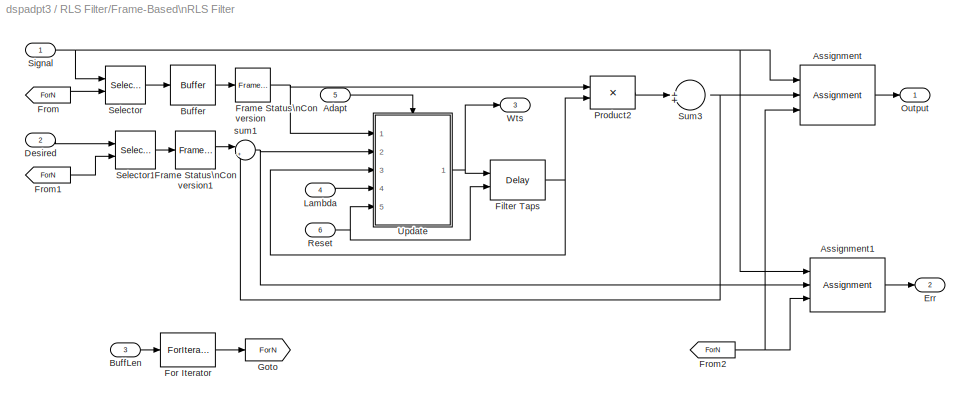
BLOCK [SubSystem] RLS Filter/Frame-Based\nRLS Filter
  MaskEnableString = on
  MaskIconFrame = on
  MaskIconOpaque = on
  MaskIconRotate = none
  MaskIconUnits = autoscale
  MaskInitialization = dspblkrlsfor;
  MaskPromptString = Send filter weights to output:
  MaskSelfModifiable = on
  MaskStyleString = checkbox
  MaskToolTipString = on
  MaskTunableValueString = off
  MaskValueString = on
  MaskVariables = weights_for=@1;
  MaskVisibilityString = on
  MinAlgLoopOccurrences = off
  Ports = [6, 3]
  PropExecContextAcrossSSBoundary = on
  RTWSystemCode = Auto
  TreatAsAtomicUnit = on
BLOCK [Inport] RLS Filter/Frame-Based\nRLS Filter/Adapt
  IconDisplay = Port number
  LatchInput = off
  Port = 5
BLOCK [Assignment] RLS Filter/Frame-Based\nRLS Filter/Assignment
  ColumnSrc = External
  ElementSrc = External
  Ports = [3, 1]
  Rows = -1
BLOCK [Assignment] RLS Filter/Frame-Based\nRLS Filter/Assignment1
  ColumnSrc = External
  ElementSrc = External
  Ports = [3, 1]
  Rows = -1
BLOCK [Inport] RLS Filter/Frame-Based\nRLS Filter/BuffLen
  IconDisplay = Port number
  LatchInput = off
  Port = 3
BLOCK [Reference] RLS Filter/Frame-Based\nRLS Filter/Buffer  REF=dspbuff3/Buffer
  N = L
  Ports = [1, 1]
  SourceBlock = dspbuff3/Buffer
  SourceType = Buffer
  V = L-1
  ic = 0
BLOCK [Inport] RLS Filter/Frame-Based\nRLS Filter/Desired
  IconDisplay = Port number
  LatchInput = off
  Port = 2
BLOCK [Outport] RLS Filter/Frame-Based\nRLS Filter/Err
  BusOutputAsStruct = off
  IconDisplay = Port number
  Port = 2
BLOCK [Reference] RLS Filter/Frame-Based\nRLS Filter/Filter Taps  REF=dspsigops/Delay
  Ports = [2, 1]
  SourceBlock = dspsigops/Delay
  SourceType = Delay
  delay = 1
  dif_ic_for_ch = off
  dif_ic_for_dly = off
  dly_unit = Samples
  ic = flipud(ic(:))
  ic_detail = on
  reset_popup = Non-zero sample
BLOCK [ForIterator] RLS Filter/Frame-Based\nRLS Filter/For Iterator
  IterationLimit = 4
  IterationSource = external
  Ports = [1, 1]
BLOCK [Reference] RLS Filter/Frame-Based\nRLS Filter/Frame Status\nConversion  REF=dspsigattribs/Frame Status\nConversion
  Ports = [1, 1]
  SourceBlock = dspsigattribs/Frame Status\nConversion
  SourceType = Frame Status Conversion
  growRefPort = off
  outframe = Sample-based
BLOCK [Reference] RLS Filter/Frame-Based\nRLS Filter/Frame Status\nConversion1  REF=dspsigattribs/Frame Status\nConversion
  Ports = [1, 1]
  SourceBlock = dspsigattribs/Frame Status\nConversion
  SourceType = Frame Status Conversion
  growRefPort = off
  outframe = Sample-based
BLOCK [From] RLS Filter/Frame-Based\nRLS Filter/From
  DialogController = Simulink.DDGSource
  GotoTag = ForN
BLOCK [From] RLS Filter/Frame-Based\nRLS Filter/From1
  DialogController = Simulink.DDGSource
  GotoTag = ForN
BLOCK [From] RLS Filter/Frame-Based\nRLS Filter/From2
  DialogController = Simulink.DDGSource
  GotoTag = ForN
BLOCK [Goto] RLS Filter/Frame-Based\nRLS Filter/Goto
  DialogController = Simulink.DDGSource
  GotoTag = ForN
  TagVisibility = local
BLOCK [Inport] RLS Filter/Frame-Based\nRLS Filter/Lambda
  IconDisplay = Port number
  LatchInput = off
  Port = 4
BLOCK [Outport] RLS Filter/Frame-Based\nRLS Filter/Output
  BusOutputAsStruct = off
  IconDisplay = Port number
BLOCK [Product] RLS Filter/Frame-Based\nRLS Filter/Product2
  InputSameDT = off
  Ports = [2, 1]
  RndMeth = Floor
BLOCK [Inport] RLS Filter/Frame-Based\nRLS Filter/Reset
  IconDisplay = Port number
  LatchInput = off
  Port = 6
BLOCK [Selector] RLS Filter/Frame-Based\nRLS Filter/Selector
  ElementSrc = External
  Elements = [1 3]
  Ports = [2, 1]
BLOCK [Selector] RLS Filter/Frame-Based\nRLS Filter/Selector1
  ElementSrc = External
  Elements = [1 3]
  Ports = [2, 1]
BLOCK [Inport] RLS Filter/Frame-Based\nRLS Filter/Signal
  IconDisplay = Port number
  LatchInput = off
BLOCK [Sum] RLS Filter/Frame-Based\nRLS Filter/Sum3
  IconShape = round
  InputSameDT = off
  Inputs = 1
  OutDataTypeMode = Inherit via internal rule
  Ports = [1, 1]
BLOCK [SubSystem] RLS Filter/Frame-Based\nRLS Filter/Update
  MinAlgLoopOccurrences = off
  Ports = [5, 1, 1]
  PropExecContextAcrossSSBoundary = on
  RTWSystemCode = Auto
  TreatAsAtomicUnit = off
BLOCK [Constant] RLS Filter/Frame-Based\nRLS Filter/Update/Constant
  OutDataTypeMode = Inherit via back propagation
BLOCK [Reference] RLS Filter/Frame-Based\nRLS Filter/Update/Correlation  REF=dspsigops/Delay
  Ports = [2, 1]
  SourceBlock = dspsigops/Delay
  SourceType = Delay
  delay = 1
  dif_ic_for_ch = on
  dif_ic_for_dly = off
  dly_unit = Samples
  ic = eye(L)./delta
  ic_detail = on
  reset_popup = Non-zero sample
BLOCK [Reference] RLS Filter/Frame-Based\nRLS Filter/Update/Dot Product  REF=simulink/Math\nOperations/Dot Product
  Ports = [2, 1]
  SourceBlock = simulink/Math\nOperations/Dot Product
  SourceType = Dot Product
BLOCK [EnablePort] RLS Filter/Frame-Based\nRLS Filter/Update/Enable
  Ports = []
BLOCK [Inport] RLS Filter/Frame-Based\nRLS Filter/Update/Err
  IconDisplay = Port number
  LatchInput = off
  Port = 2
BLOCK [From] RLS Filter/Frame-Based\nRLS Filter/Update/From2
  DialogController = Simulink.DDGSource
  GotoTag = lambda
BLOCK [Gain] RLS Filter/Frame-Based\nRLS Filter/Update/Gain
  Gain = 1/2
BLOCK [Goto] RLS Filter/Frame-Based\nRLS Filter/Update/Goto
  DialogController = Simulink.DDGSource
  GotoTag = lambda
  TagVisibility = local
BLOCK [Inport] RLS Filter/Frame-Based\nRLS Filter/Update/Lambda
  IconDisplay = Port number
  LatchInput = off
  Port = 4
BLOCK [Math] RLS Filter/Frame-Based\nRLS Filter/Update/Math\nFunction
  Operator = hermitian
  Ports = [1, 1]
BLOCK [Reference] RLS Filter/Frame-Based\nRLS Filter/Update/Matrix Multiply  REF=dspmtrx3/Matrix Multiply
  OptimizationLevel = None
  Ports = [2, 1]
  SourceBlock = dspmtrx3/Matrix Multiply
  SourceType = Matrix Multiply
  numInputPorts = 2
BLOCK [Reference] RLS Filter/Frame-Based\nRLS Filter/Update/Matrix Multiply1  REF=dspmtrx3/Matrix Multiply
  OptimizationLevel = None
  Ports = [2, 1]
  SourceBlock = dspmtrx3/Matrix Multiply
  SourceType = Matrix Multiply
  numInputPorts = 2
BLOCK [Product] RLS Filter/Frame-Based\nRLS Filter/Update/Product
  InputSameDT = off
  Inputs = /*
  Ports = [2, 1]
  RndMeth = Floor
BLOCK [Product] RLS Filter/Frame-Based\nRLS Filter/Update/Product1
  InputSameDT = off
  Ports = [2, 1]
  RndMeth = Floor
BLOCK [Product] RLS Filter/Frame-Based\nRLS Filter/Update/Product2
  InputSameDT = off
  Inputs = */
  Ports = [2, 1]
  RndMeth = Floor
BLOCK [Inport] RLS Filter/Frame-Based\nRLS Filter/Update/Reset
  IconDisplay = Port number
  LatchInput = off
  Port = 5
BLOCK [Reference] RLS Filter/Frame-Based\nRLS Filter/Update/Signal Specification  REF=simulink/Signal\nAttributes/Signal Specification
  D = [L,L]
  DataType = auto
  OutDataType = sfix(16)
  OutScaling = 2^0
  Ports = [1, 1]
  SamplingMode = auto
  SignalType = auto
  SourceBlock = simulink/Signal\nAttributes/Signal Specification
  SourceType = Signal Specification
  Ts = -1
BLOCK [SubSystem] RLS Filter/Frame-Based\nRLS Filter/Update/Stabilize
  MinAlgLoopOccurrences = off
  Ports = [1, 1]
  PropExecContextAcrossSSBoundary = on
  RTWSystemCode = Auto
  TreatAsAtomicUnit = off
BLOCK [Inport] RLS Filter/Frame-Based\nRLS Filter/Update/Stabilize/In
  IconDisplay = Port number
  LatchInput = off
BLOCK [Outport] RLS Filter/Frame-Based\nRLS Filter/Update/Stabilize/Out
  BusOutputAsStruct = off
  IconDisplay = Port number
BLOCK [Sum] RLS Filter/Frame-Based\nRLS Filter/Update/Stabilize/Sum2
  IconShape = round
  Inputs = |++
  Ports = [2, 1]
BLOCK [Math] RLS Filter/Frame-Based\nRLS Filter/Update/Stabilize/conj1
  Operator = hermitian
  Ports = [1, 1]
BLOCK [Sum] RLS Filter/Frame-Based\nRLS Filter/Update/Sum
  InputSameDT = off
  Ports = [2, 1]
BLOCK [Sum] RLS Filter/Frame-Based\nRLS Filter/Update/Sum1
  IconShape = round
  InputSameDT = off
  Inputs = +-|
  OutDataTypeMode = Inherit via internal rule
  Ports = [2, 1]
BLOCK [Sum] RLS Filter/Frame-Based\nRLS Filter/Update/Sum2
  IconShape = round
  InputSameDT = off
  Inputs = ++|
  OutDataTypeMode = Inherit via internal rule
  Ports = [2, 1]
BLOCK [Outport] RLS Filter/Frame-Based\nRLS Filter/Update/W(n)
  BusOutputAsStruct = off
  IconDisplay = Port number
BLOCK [Inport] RLS Filter/Frame-Based\nRLS Filter/Update/W(n-1)
  IconDisplay = Port number
  LatchInput = off
  Port = 3
BLOCK [Inport] RLS Filter/Frame-Based\nRLS Filter/Update/X
  IconDisplay = Port number
  LatchInput = off
BLOCK [Math] RLS Filter/Frame-Based\nRLS Filter/Update/conj
  Operator = conj
  Ports = [1, 1]
BLOCK [Outport] RLS Filter/Frame-Based\nRLS Filter/Wts
  BusOutputAsStruct = off
  IconDisplay = Port number
  Port = 3
BLOCK [Sum] RLS Filter/Frame-Based\nRLS Filter/sum1
  IconShape = round
  Inputs = |+-
  Ports = [2, 1]
BLOCK [Inport] RLS Filter/Input
  IconDisplay = Port number
  LatchInput = off
BLOCK [Constant] RLS Filter/Lambda
  OutDataTypeMode = Inherit via back propagation
  Value = lambda
BLOCK [Outport] RLS Filter/Output
  BusOutputAsStruct = off
  IconDisplay = Port number
BLOCK [Constant] RLS Filter/Reset
  Value = boolean(0)
BLOCK [Width] RLS Filter/Width
  OutputDataTypeScalingMode = Inherit via back propagation
BLOCK [Outport] RLS Filter/Wts
  BusOutputAsStruct = off
  IconDisplay = Port number
  Port = 3
ANNOTATION (root): Adaptive Filters
ANNOTATION (root): Orange blocks support fixed-point data types.
LINE Fast Block LMS Filter/Adapt:1 -> Fast Block LMS Filter/BLMS For Iterator\nSubsystem:5
LINE Fast Block LMS Filter/BLMS For Iterator\nSubsystem/Algorithm:1 -> Fast Block LMS Filter/BLMS For Iterator\nSubsystem/Selector3:1
LINE Fast Block LMS Filter/BLMS For Iterator\nSubsystem/Algorithm:2 -> Fast Block LMS Filter/BLMS For Iterator\nSubsystem/Inherit\nComplexity1:1
LINE Fast Block LMS Filter/BLMS For Iterator\nSubsystem/Assignment1:1 -> Fast Block LMS Filter/BLMS For Iterator\nSubsystem/e:1
LINE Fast Block LMS Filter/BLMS For Iterator\nSubsystem/Assignment:1 -> Fast Block LMS Filter/BLMS For Iterator\nSubsystem/y:1
LINE Fast Block LMS Filter/BLMS For Iterator\nSubsystem/Buffer:1 -> Fast Block LMS Filter/BLMS For Iterator\nSubsystem/Algorithm:1
LINE Fast Block LMS Filter/BLMS For Iterator\nSubsystem/Constant:1 -> Fast Block LMS Filter/BLMS For Iterator\nSubsystem/Selector3:2
LINE Fast Block LMS Filter/BLMS For Iterator\nSubsystem/For Iterator:1 -> Fast Block LMS Filter/BLMS For Iterator\nSubsystem/Subsystem1:1
LINE Fast Block LMS Filter/BLMS For Iterator\nSubsystem/FromBlk1:1 -> Fast Block LMS Filter/BLMS For Iterator\nSubsystem/Selector1:2
LINE Fast Block LMS Filter/BLMS For Iterator\nSubsystem/FromBlk2:1 -> Fast Block LMS Filter/BLMS For Iterator\nSubsystem/Assignment:3
LINE Fast Block LMS Filter/BLMS For Iterator\nSubsystem/FromBlk3:1 -> Fast Block LMS Filter/BLMS For Iterator\nSubsystem/Assignment1:3
NET Fast Block LMS Filter/BLMS For Iterator\nSubsystem/FromBlk4:1 -> Fast Block LMS Filter/BLMS For Iterator\nSubsystem/Assignment1:1, Fast Block LMS Filter/BLMS For Iterator\nSubsystem/Inherit\nComplexity1:2, Fast Block LMS Filter/BLMS For Iterator\nSubsystem/Inherit\nComplexity2:2
NET Fast Block LMS Filter/BLMS For Iterator\nSubsystem/FromBlk5:1 -> Fast Block LMS Filter/BLMS For Iterator\nSubsystem/Assignment:1, Fast Block LMS Filter/BLMS For Iterator\nSubsystem/Inherit\nComplexity:2
LINE Fast Block LMS Filter/BLMS For Iterator\nSubsystem/FromBlk:1 -> Fast Block LMS Filter/BLMS For Iterator\nSubsystem/Selector:2
LINE Fast Block LMS Filter/BLMS For Iterator\nSubsystem/Inherit\nComplexity1:1 -> Fast Block LMS Filter/BLMS For Iterator\nSubsystem/Wts:1
LINE Fast Block LMS Filter/BLMS For Iterator\nSubsystem/Inherit\nComplexity2:1 -> Fast Block LMS Filter/BLMS For Iterator\nSubsystem/Assignment1:2
LINE Fast Block LMS Filter/BLMS For Iterator\nSubsystem/Inherit\nComplexity:1 -> Fast Block LMS Filter/BLMS For Iterator\nSubsystem/Assignment:2
LINE Fast Block LMS Filter/BLMS For Iterator\nSubsystem/Selector1:1 -> Fast Block LMS Filter/BLMS For Iterator\nSubsystem/Sum:1
NET Fast Block LMS Filter/BLMS For Iterator\nSubsystem/Selector3:1 -> Fast Block LMS Filter/BLMS For Iterator\nSubsystem/Inherit\nComplexity:1, Fast Block LMS Filter/BLMS For Iterator\nSubsystem/Sum:2
LINE Fast Block LMS Filter/BLMS For Iterator\nSubsystem/Selector:1 -> Fast Block LMS Filter/BLMS For Iterator\nSubsystem/Buffer:1
LINE Fast Block LMS Filter/BLMS For Iterator\nSubsystem/Subsystem1/BlkVec:1 -> Fast Block LMS Filter/BLMS For Iterator\nSubsystem/Subsystem1/Sum1:2
LINE Fast Block LMS Filter/BLMS For Iterator\nSubsystem/Subsystem1/Constant:1 -> Fast Block LMS Filter/BLMS For Iterator\nSubsystem/Subsystem1/Sum:2
LINE Fast Block LMS Filter/BLMS For Iterator\nSubsystem/Subsystem1/Gain:1 -> Fast Block LMS Filter/BLMS For Iterator\nSubsystem/Subsystem1/Sum1:1
LINE Fast Block LMS Filter/BLMS For Iterator\nSubsystem/Subsystem1/Index:1 -> Fast Block LMS Filter/BLMS For Iterator\nSubsystem/Subsystem1/Sum:1
LINE Fast Block LMS Filter/BLMS For Iterator\nSubsystem/Subsystem1/Sum1:1 -> Fast Block LMS Filter/BLMS For Iterator\nSubsystem/Subsystem1/nn:1
LINE Fast Block LMS Filter/BLMS For Iterator\nSubsystem/Subsystem1/Sum:1 -> Fast Block LMS Filter/BLMS For Iterator\nSubsystem/Subsystem1/Gain:1
LINE Fast Block LMS Filter/BLMS For Iterator\nSubsystem/Subsystem1:1 -> Fast Block LMS Filter/BLMS For Iterator\nSubsystem/Goto:1
NET Fast Block LMS Filter/BLMS For Iterator\nSubsystem/Sum:1 -> Fast Block LMS Filter/BLMS For Iterator\nSubsystem/Algorithm:2, Fast Block LMS Filter/BLMS For Iterator\nSubsystem/Inherit\nComplexity2:1
LINE Fast Block LMS Filter/BLMS For Iterator\nSubsystem/adapt:1 -> Fast Block LMS Filter/BLMS For Iterator\nSubsystem/Algorithm:4
LINE Fast Block LMS Filter/BLMS For Iterator\nSubsystem/d(n):1 -> Fast Block LMS Filter/BLMS For Iterator\nSubsystem/Selector1:1
LINE Fast Block LMS Filter/BLMS For Iterator\nSubsystem/mu:1 -> Fast Block LMS Filter/BLMS For Iterator\nSubsystem/Algorithm:3
LINE Fast Block LMS Filter/BLMS For Iterator\nSubsystem/ntrB:1 -> Fast Block LMS Filter/BLMS For Iterator\nSubsystem/For Iterator:1
LINE Fast Block LMS Filter/BLMS For Iterator\nSubsystem/reset:1 -> Fast Block LMS Filter/BLMS For Iterator\nSubsystem/Algorithm:5
NET Fast Block LMS Filter/BLMS For Iterator\nSubsystem/x:1 -> Fast Block LMS Filter/BLMS For Iterator\nSubsystem/Goto1:1, Fast Block LMS Filter/BLMS For Iterator\nSubsystem/Selector:1
LINE Fast Block LMS Filter/BLMS For Iterator\nSubsystem:1 -> Fast Block LMS Filter/Frame Status\nConversion:1
LINE Fast Block LMS Filter/BLMS For Iterator\nSubsystem:2 -> Fast Block LMS Filter/Frame Status\nConversion1:1
LINE Fast Block LMS Filter/BLMS For Iterator\nSubsystem:3 -> Fast Block LMS Filter/To Sample:1
LINE Fast Block LMS Filter/Check Signal\nAttributes1:1 -> Fast Block LMS Filter/Error If Not\nFloating-Point1:1
LINE Fast Block LMS Filter/Check Signal\nAttributes:1 -> Fast Block LMS Filter/Error If Not\nFloating-Point:1
LINE Fast Block LMS Filter/Desired:1 -> Fast Block LMS Filter/Check Signal\nAttributes1:1
LINE Fast Block LMS Filter/Error If Not\nFloating-Point1:1 -> Fast Block LMS Filter/Error If sample-based\nvector1:1
LINE Fast Block LMS Filter/Error If Not\nFloating-Point:1 -> Fast Block LMS Filter/Error If sample-based\nvector:1
LINE Fast Block LMS Filter/Error If sample-based\nvector1:1 -> Fast Block LMS Filter/BLMS For Iterator\nSubsystem:2
NET Fast Block LMS Filter/Error If sample-based\nvector:1 -> Fast Block LMS Filter/BLMS For Iterator\nSubsystem:1, Fast Block LMS Filter/Frame Status\nConversion1:2, Fast Block LMS Filter/Frame Status\nConversion:2
LINE Fast Block LMS Filter/Frame Status\nConversion1:1 -> Fast Block LMS Filter/Error:1
LINE Fast Block LMS Filter/Frame Status\nConversion:1 -> Fast Block LMS Filter/Output:1
NET Fast Block LMS Filter/Gain:1 -> Fast Block LMS Filter/BLMS For Iterator\nSubsystem:3, Fast Block LMS Filter/Integer check:1
NET Fast Block LMS Filter/Input:1 -> Fast Block LMS Filter/Check Signal\nAttributes:1, Fast Block LMS Filter/Width:1
LINE Fast Block LMS Filter/Integer check/Relational\nOperator:1 -> Fast Block LMS Filter/Integer check/Assertion:1
LINE Fast Block LMS Filter/Integer check/Rounding\nFunction:1 -> Fast Block LMS Filter/Integer check/Relational\nOperator:2
NET Fast Block LMS Filter/Integer check/ntrB:1 -> Fast Block LMS Filter/Integer check/Relational\nOperator:1, Fast Block LMS Filter/Integer check/Rounding\nFunction:1
LINE Fast Block LMS Filter/Reset:1 -> Fast Block LMS Filter/BLMS For Iterator\nSubsystem:6
LINE Fast Block LMS Filter/Step-size:1 -> Fast Block LMS Filter/BLMS For Iterator\nSubsystem:4
LINE Fast Block LMS Filter/To Sample:1 -> Fast Block LMS Filter/Wts:1
LINE Fast Block LMS Filter/Width:1 -> Fast Block LMS Filter/Gain:1
LINE Kalman\nAdaptive Filter/Adapt:1 -> Kalman\nAdaptive Filter/Check Signal\nAttributes2:1
LINE Kalman\nAdaptive Filter/Check Signal\nAttributes1:1 -> Kalman\nAdaptive Filter/Error If Not\nFloating-Point1:1
LINE Kalman\nAdaptive Filter/Check Signal\nAttributes2:1 -> Kalman\nAdaptive Filter/Update:3
LINE Kalman\nAdaptive Filter/Check Signal\nAttributes3:1 -> Kalman\nAdaptive Filter/Update:4
LINE Kalman\nAdaptive Filter/Check Signal\nAttributes:1 -> Kalman\nAdaptive Filter/Error If Not\nFloating-Point:1
LINE Kalman\nAdaptive Filter/Dot Product:1 -> Kalman\nAdaptive Filter/Out:1
LINE Kalman\nAdaptive Filter/Err:1 -> Kalman\nAdaptive Filter/Check Signal\nAttributes1:1
LINE Kalman\nAdaptive Filter/Error If Not\nFloating-Point1:1 -> Kalman\nAdaptive Filter/Update:2
LINE Kalman\nAdaptive Filter/Error If Not\nFloating-Point:1 -> Kalman\nAdaptive Filter/Rebuffer:1
NET Kalman\nAdaptive Filter/Frame Status\nConversion:1 -> Kalman\nAdaptive Filter/Dot Product:2, Kalman\nAdaptive Filter/Update:1
LINE Kalman\nAdaptive Filter/In:1 -> Kalman\nAdaptive Filter/Check Signal\nAttributes:1
LINE Kalman\nAdaptive Filter/Rebuffer:1 -> Kalman\nAdaptive Filter/Frame Status\nConversion:1
LINE Kalman\nAdaptive Filter/Reset:1 -> Kalman\nAdaptive Filter/Check Signal\nAttributes3:1
LINE Kalman\nAdaptive Filter/Update/Adapt:1 -> Kalman\nAdaptive Filter/Update/Coefficient Update:enable
LINE Kalman\nAdaptive Filter/Update/Coefficient Update/Constant1:1 -> Kalman\nAdaptive Filter/Update/Coefficient Update/Gain:1
LINE Kalman\nAdaptive Filter/Update/Coefficient Update/Constant:1 -> Kalman\nAdaptive Filter/Update/Coefficient Update/Gain1:1
NET Kalman\nAdaptive Filter/Update/Coefficient Update/Correlation:1 -> Kalman\nAdaptive Filter/Update/Coefficient Update/Matrix Multiply1:1, Kalman\nAdaptive Filter/Update/Coefficient Update/Sum2:1
LINE Kalman\nAdaptive Filter/Update/Coefficient Update/Create Diagonal\nMatrix:1 -> Kalman\nAdaptive Filter/Update/Coefficient Update/Sum2:3
LINE Kalman\nAdaptive Filter/Update/Coefficient Update/Dot Product:1 -> Kalman\nAdaptive Filter/Update/Coefficient Update/Sum3:2
LINE Kalman\nAdaptive Filter/Update/Coefficient Update/Err:1 -> Kalman\nAdaptive Filter/Update/Coefficient Update/conj2:1
LINE Kalman\nAdaptive Filter/Update/Coefficient Update/Gain1:1 -> Kalman\nAdaptive Filter/Update/Coefficient Update/Sum3:1
LINE Kalman\nAdaptive Filter/Update/Coefficient Update/Gain:1 -> Kalman\nAdaptive Filter/Update/Coefficient Update/Create Diagonal\nMatrix:1
NET Kalman\nAdaptive Filter/Update/Coefficient Update/In:1 -> Kalman\nAdaptive Filter/Update/Coefficient Update/Dot Product:1, Kalman\nAdaptive Filter/Update/Coefficient Update/Matrix Multiply1:2
LINE Kalman\nAdaptive Filter/Update/Coefficient Update/Math\nFunction:1 -> Kalman\nAdaptive Filter/Update/Coefficient Update/k(n):1
NET Kalman\nAdaptive Filter/Update/Coefficient Update/Matrix Multiply1:1 -> Kalman\nAdaptive Filter/Update/Coefficient Update/Dot Product:2, Kalman\nAdaptive Filter/Update/Coefficient Update/conj:1, Kalman\nAdaptive Filter/Update/Coefficient Update/k(n):2
LINE Kalman\nAdaptive Filter/Update/Coefficient Update/Matrix Multiply2:1 -> Kalman\nAdaptive Filter/Update/Coefficient Update/Sum2:2
LINE Kalman\nAdaptive Filter/Update/Coefficient Update/Prev Taps:1 -> Kalman\nAdaptive Filter/Update/Coefficient Update/Sum1:1
LINE Kalman\nAdaptive Filter/Update/Coefficient Update/Reset:1 -> Kalman\nAdaptive Filter/Update/Coefficient Update/Correlation:2
LINE Kalman\nAdaptive Filter/Update/Coefficient Update/Sum1:1 -> Kalman\nAdaptive Filter/Update/Coefficient Update/New Taps:1
LINE Kalman\nAdaptive Filter/Update/Coefficient Update/Sum2:1 -> Kalman\nAdaptive Filter/Update/Coefficient Update/Correlation:1
LINE Kalman\nAdaptive Filter/Update/Coefficient Update/Sum3:1 -> Kalman\nAdaptive Filter/Update/Coefficient Update/Math\nFunction:1
LINE Kalman\nAdaptive Filter/Update/Coefficient Update/conj2:1 -> Kalman\nAdaptive Filter/Update/Coefficient Update/k(n)*e(n):1
LINE Kalman\nAdaptive Filter/Update/Coefficient Update/conj:1 -> Kalman\nAdaptive Filter/Update/Coefficient Update/Matrix Multiply2:2
LINE Kalman\nAdaptive Filter/Update/Coefficient Update/k(n)*e(n):1 -> Kalman\nAdaptive Filter/Update/Coefficient Update/Sum1:2
NET Kalman\nAdaptive Filter/Update/Coefficient Update/k(n):1 -> Kalman\nAdaptive Filter/Update/Coefficient Update/Matrix Multiply2:1, Kalman\nAdaptive Filter/Update/Coefficient Update/k(n)*e(n):2
LINE Kalman\nAdaptive Filter/Update/Coefficient Update:1 -> Kalman\nAdaptive Filter/Update/Filter Taps:1
LINE Kalman\nAdaptive Filter/Update/Err:1 -> Kalman\nAdaptive Filter/Update/Coefficient Update:3
NET Kalman\nAdaptive Filter/Update/Filter Taps:1 -> Kalman\nAdaptive Filter/Update/Coef:1, Kalman\nAdaptive Filter/Update/Coefficient Update:1
LINE Kalman\nAdaptive Filter/Update/In:1 -> Kalman\nAdaptive Filter/Update/Coefficient Update:2
NET Kalman\nAdaptive Filter/Update/Reset:1 -> Kalman\nAdaptive Filter/Update/Coefficient Update:4, Kalman\nAdaptive Filter/Update/Filter Taps:2
NET Kalman\nAdaptive Filter/Update:1 -> Kalman\nAdaptive Filter/Dot Product:1, Kalman\nAdaptive Filter/Taps:1
LINE RLS Filter/Adapt:1 -> RLS Filter/Frame-Based\nRLS Filter:5
LINE RLS Filter/Check Signal\nAttributes1:1 -> RLS Filter/Error If Not\nFloating-Point1:1
LINE RLS Filter/Check Signal\nAttributes:1 -> RLS Filter/Error If Not\nFloating-Point:1
LINE RLS Filter/Desired:1 -> RLS Filter/Check Signal\nAttributes1:1
LINE RLS Filter/Error If Not\nFloating-Point1:1 -> RLS Filter/Error If sample-based\nvector1:1
LINE RLS Filter/Error If Not\nFloating-Point:1 -> RLS Filter/Error If sample-based\nvector:1
LINE RLS Filter/Error If sample-based\nvector1:1 -> RLS Filter/Frame-Based\nRLS Filter:2
LINE RLS Filter/Error If sample-based\nvector:1 -> RLS Filter/Frame-Based\nRLS Filter:1
LINE RLS Filter/Flip:1 -> RLS Filter/Wts:1
LINE RLS Filter/Frame-Based\nRLS Filter/Adapt:1 -> RLS Filter/Frame-Based\nRLS Filter/Update:enable
LINE RLS Filter/Frame-Based\nRLS Filter/Assignment1:1 -> RLS Filter/Frame-Based\nRLS Filter/Err:1
LINE RLS Filter/Frame-Based\nRLS Filter/Assignment:1 -> RLS Filter/Frame-Based\nRLS Filter/Output:1
LINE RLS Filter/Frame-Based\nRLS Filter/BuffLen:1 -> RLS Filter/Frame-Based\nRLS Filter/For Iterator:1
LINE RLS Filter/Frame-Based\nRLS Filter/Buffer:1 -> RLS Filter/Frame-Based\nRLS Filter/Frame Status\nConversion:1
LINE RLS Filter/Frame-Based\nRLS Filter/Desired:1 -> RLS Filter/Frame-Based\nRLS Filter/Selector1:1
NET RLS Filter/Frame-Based\nRLS Filter/Filter Taps:1 -> RLS Filter/Frame-Based\nRLS Filter/Product2:2, RLS Filter/Frame-Based\nRLS Filter/Update:3
LINE RLS Filter/Frame-Based\nRLS Filter/For Iterator:1 -> RLS Filter/Frame-Based\nRLS Filter/Goto:1
LINE RLS Filter/Frame-Based\nRLS Filter/Frame Status\nConversion1:1 -> RLS Filter/Frame-Based\nRLS Filter/sum1:1
NET RLS Filter/Frame-Based\nRLS Filter/Frame Status\nConversion:1 -> RLS Filter/Frame-Based\nRLS Filter/Product2:1, RLS Filter/Frame-Based\nRLS Filter/Update:1
LINE RLS Filter/Frame-Based\nRLS Filter/From1:1 -> RLS Filter/Frame-Based\nRLS Filter/Selector1:2
NET RLS Filter/Frame-Based\nRLS Filter/From2:1 -> RLS Filter/Frame-Based\nRLS Filter/Assignment1:3, RLS Filter/Frame-Based\nRLS Filter/Assignment:3
LINE RLS Filter/Frame-Based\nRLS Filter/From:1 -> RLS Filter/Frame-Based\nRLS Filter/Selector:2
LINE RLS Filter/Frame-Based\nRLS Filter/Lambda:1 -> RLS Filter/Frame-Based\nRLS Filter/Update:4
LINE RLS Filter/Frame-Based\nRLS Filter/Product2:1 -> RLS Filter/Frame-Based\nRLS Filter/Sum3:1
NET RLS Filter/Frame-Based\nRLS Filter/Reset:1 -> RLS Filter/Frame-Based\nRLS Filter/Filter Taps:2, RLS Filter/Frame-Based\nRLS Filter/Update:5
LINE RLS Filter/Frame-Based\nRLS Filter/Selector1:1 -> RLS Filter/Frame-Based\nRLS Filter/Frame Status\nConversion1:1
LINE RLS Filter/Frame-Based\nRLS Filter/Selector:1 -> RLS Filter/Frame-Based\nRLS Filter/Buffer:1
NET RLS Filter/Frame-Based\nRLS Filter/Signal:1 -> RLS Filter/Frame-Based\nRLS Filter/Assignment1:1, RLS Filter/Frame-Based\nRLS Filter/Assignment:1, RLS Filter/Frame-Based\nRLS Filter/Selector:1
NET RLS Filter/Frame-Based\nRLS Filter/Sum3:1 -> RLS Filter/Frame-Based\nRLS Filter/Assignment:2, RLS Filter/Frame-Based\nRLS Filter/sum1:2
LINE RLS Filter/Frame-Based\nRLS Filter/Update/Constant:1 -> RLS Filter/Frame-Based\nRLS Filter/Update/Sum:2
LINE RLS Filter/Frame-Based\nRLS Filter/Update/Correlation:1 -> RLS Filter/Frame-Based\nRLS Filter/Update/Stabilize:1
LINE RLS Filter/Frame-Based\nRLS Filter/Update/Dot Product:1 -> RLS Filter/Frame-Based\nRLS Filter/Update/Sum:1
LINE RLS Filter/Frame-Based\nRLS Filter/Update/Err:1 -> RLS Filter/Frame-Based\nRLS Filter/Update/Product1:1
LINE RLS Filter/Frame-Based\nRLS Filter/Update/From2:1 -> RLS Filter/Frame-Based\nRLS Filter/Update/Product2:2
LINE RLS Filter/Frame-Based\nRLS Filter/Update/Gain:1 -> RLS Filter/Frame-Based\nRLS Filter/Update/Signal Specification:1
LINE RLS Filter/Frame-Based\nRLS Filter/Update/Lambda:1 -> RLS Filter/Frame-Based\nRLS Filter/Update/Goto:1
LINE RLS Filter/Frame-Based\nRLS Filter/Update/Math\nFunction:1 -> RLS Filter/Frame-Based\nRLS Filter/Update/Matrix Multiply:2
NET RLS Filter/Frame-Based\nRLS Filter/Update/Matrix Multiply1:1 -> RLS Filter/Frame-Based\nRLS Filter/Update/Dot Product:2, RLS Filter/Frame-Based\nRLS Filter/Update/Math\nFunction:1, RLS Filter/Frame-Based\nRLS Filter/Update/Product:2
LINE RLS Filter/Frame-Based\nRLS Filter/Update/Matrix Multiply:1 -> RLS Filter/Frame-Based\nRLS Filter/Update/Sum1:2
LINE RLS Filter/Frame-Based\nRLS Filter/Update/Product1:1 -> RLS Filter/Frame-Based\nRLS Filter/Update/Sum2:2
LINE RLS Filter/Frame-Based\nRLS Filter/Update/Product2:1 -> RLS Filter/Frame-Based\nRLS Filter/Update/Gain:1
NET RLS Filter/Frame-Based\nRLS Filter/Update/Product:1 -> RLS Filter/Frame-Based\nRLS Filter/Update/Matrix Multiply:1, RLS Filter/Frame-Based\nRLS Filter/Update/conj:1
LINE RLS Filter/Frame-Based\nRLS Filter/Update/Reset:1 -> RLS Filter/Frame-Based\nRLS Filter/Update/Correlation:2
NET RLS Filter/Frame-Based\nRLS Filter/Update/Signal Specification:1 -> RLS Filter/Frame-Based\nRLS Filter/Update/Matrix Multiply1:1, RLS Filter/Frame-Based\nRLS Filter/Update/Sum1:1
NET RLS Filter/Frame-Based\nRLS Filter/Update/Stabilize/In:1 -> RLS Filter/Frame-Based\nRLS Filter/Update/Stabilize/Sum2:2, RLS Filter/Frame-Based\nRLS Filter/Update/Stabilize/conj1:1
LINE RLS Filter/Frame-Based\nRLS Filter/Update/Stabilize/Sum2:1 -> RLS Filter/Frame-Based\nRLS Filter/Update/Stabilize/Out:1
LINE RLS Filter/Frame-Based\nRLS Filter/Update/Stabilize/conj1:1 -> RLS Filter/Frame-Based\nRLS Filter/Update/Stabilize/Sum2:1
LINE RLS Filter/Frame-Based\nRLS Filter/Update/Stabilize:1 -> RLS Filter/Frame-Based\nRLS Filter/Update/Product2:1
LINE RLS Filter/Frame-Based\nRLS Filter/Update/Sum1:1 -> RLS Filter/Frame-Based\nRLS Filter/Update/Correlation:1
LINE RLS Filter/Frame-Based\nRLS Filter/Update/Sum2:1 -> RLS Filter/Frame-Based\nRLS Filter/Update/W(n):1
LINE RLS Filter/Frame-Based\nRLS Filter/Update/Sum:1 -> RLS Filter/Frame-Based\nRLS Filter/Update/Product:1
LINE RLS Filter/Frame-Based\nRLS Filter/Update/W(n-1):1 -> RLS Filter/Frame-Based\nRLS Filter/Update/Sum2:1
NET RLS Filter/Frame-Based\nRLS Filter/Update/X:1 -> RLS Filter/Frame-Based\nRLS Filter/Update/Dot Product:1, RLS Filter/Frame-Based\nRLS Filter/Update/Matrix Multiply1:2
LINE RLS Filter/Frame-Based\nRLS Filter/Update/conj:1 -> RLS Filter/Frame-Based\nRLS Filter/Update/Product1:2
NET RLS Filter/Frame-Based\nRLS Filter/Update:1 -> RLS Filter/Frame-Based\nRLS Filter/Filter Taps:1, RLS Filter/Frame-Based\nRLS Filter/Wts:1
NET RLS Filter/Frame-Based\nRLS Filter/sum1:1 -> RLS Filter/Frame-Based\nRLS Filter/Assignment1:2, RLS Filter/Frame-Based\nRLS Filter/Update:2
LINE RLS Filter/Frame-Based\nRLS Filter:1 -> RLS Filter/Output:1
LINE RLS Filter/Frame-Based\nRLS Filter:2 -> RLS Filter/Error:1
LINE RLS Filter/Frame-Based\nRLS Filter:3 -> RLS Filter/Flip:1
NET RLS Filter/Input:1 -> RLS Filter/Check Signal\nAttributes:1, RLS Filter/Width:1
LINE RLS Filter/Lambda:1 -> RLS Filter/Frame-Based\nRLS Filter:4
LINE RLS Filter/Reset:1 -> RLS Filter/Frame-Based\nRLS Filter:6
LINE RLS Filter/Width:1 -> RLS Filter/Frame-Based\nRLS Filter:3
note: NET lines group one-source signal fan-out (src -> all destinations, sorted); 1:1 wires keep LINE
